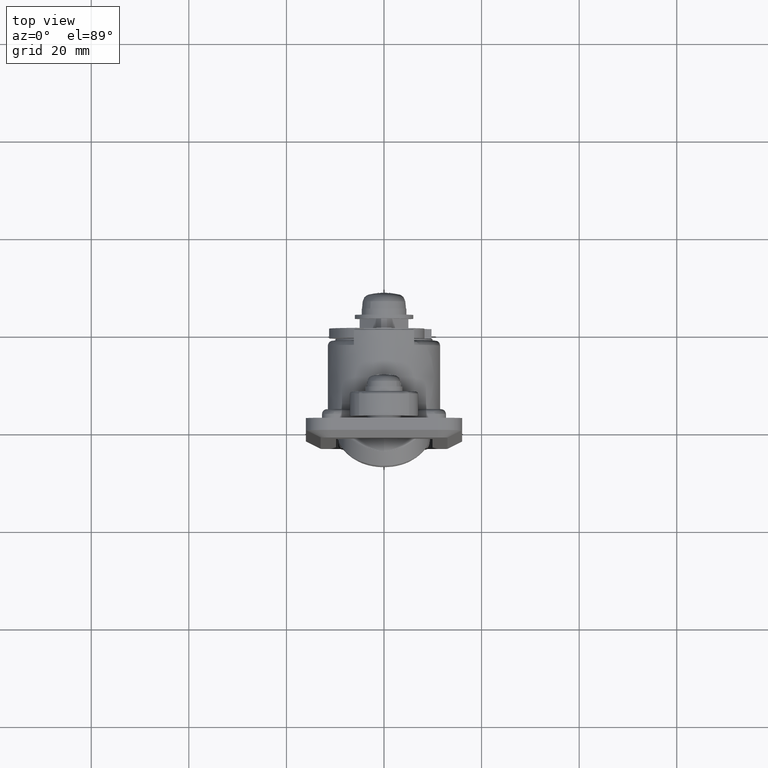
[diagram: clean part render]
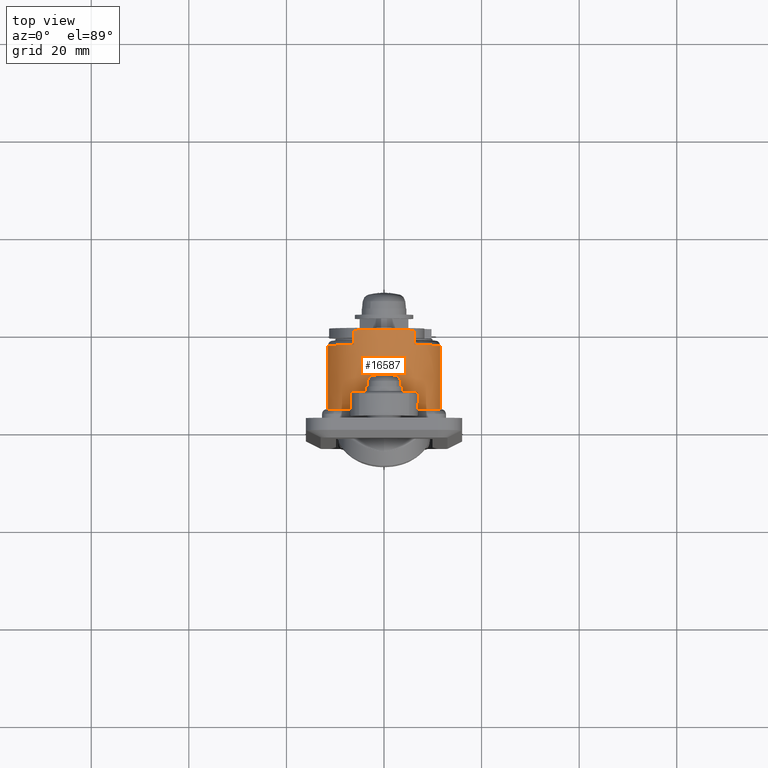
[diagram: same view with one face highlighted and labeled with its STEP entity id]
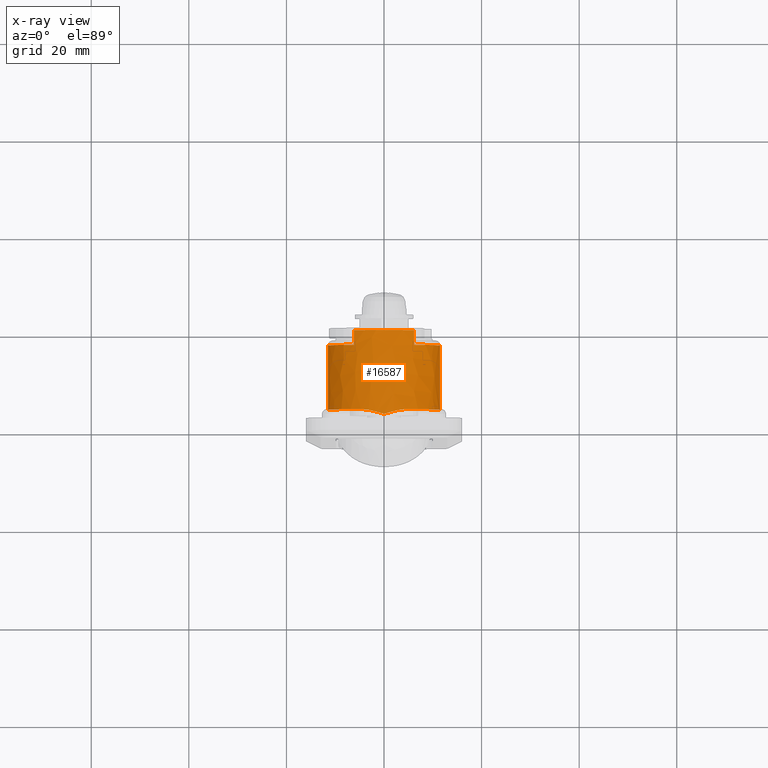
[diagram: x-ray of the same camera — body ghosted, the highlighted face saturated]
A machine part, top view. The second image highlights one B-rep face of the part: STEP entity #16587.
The next image is the same camera in x-ray: the body ghosted, the highlighted face saturated — about 0% of this face is hidden behind the body in this view.
In plain terms, the highlighted face is a freeform B-spline surface patch.
Its self-contained STEP definition (entity closure, byte-faithful):
#14096=CARTESIAN_POINT('',(3.0,4.690415759823431,11.500000000000000));
#14097=VERTEX_POINT('',#14096);
#14098=CARTESIAN_POINT('',(2.0,0.0,12.500000000000000));
#14099=VERTEX_POINT('',#14098);
#14100=CARTESIAN_POINT('',(3.0,4.690415759823431,11.500000000000000));
#14101=CARTESIAN_POINT('',(3.0,4.500392388326992,11.584884630133489));
#14102=CARTESIAN_POINT('',(2.989376017382828,4.309708842109276,11.663889404401710));
#14103=CARTESIAN_POINT('',(2.953453825861559,3.926430909640539,11.810886542966090));
#14104=CARTESIAN_POINT('',(2.928081584252105,3.733843825670081,11.878872378748300));
#14105=CARTESIAN_POINT('',(2.866392894892879,3.346413239475826,12.004225205722040));
#14106=CARTESIAN_POINT('',(2.830048187157119,3.151572512056965,12.061589668240920));
#14107=CARTESIAN_POINT('',(2.769239603087303,2.857420431964751,12.139813386983301));
#14108=CARTESIAN_POINT('',(2.747887405923897,2.758941881975345,12.164607425251710));
#14109=CARTESIAN_POINT('',(2.703542885086018,2.562246426042570,12.211383167135770));
#14110=CARTESIAN_POINT('',(2.680536602458008,2.463952355893662,12.233388737136391));
#14111=CARTESIAN_POINT('',(2.561962623284230,1.972601762261267,12.336674203456230));
#14112=CARTESIAN_POINT('',(2.455967405314631,1.579864825792287,12.397842860974450));
#14113=CARTESIAN_POINT('',(2.289201280699601,0.989072175396876,12.459098346714111));
#14114=CARTESIAN_POINT('',(2.232277269183736,0.791867987098467,12.474411080987799));
#14115=CARTESIAN_POINT('',(2.145781568037491,0.495413966688116,12.489750047008510));
#14116=CARTESIAN_POINT('',(2.102255003396337,0.347025155193370,12.495510255699200));
#14117=CARTESIAN_POINT('',(2.058470674062629,0.198349061517191,12.498396303014870));
#14118=CARTESIAN_POINT('',(2.029241510177549,0.099162776234110,12.499679414453270));
#14119=CARTESIAN_POINT('',(2.014552194140292,0.049349098586814,12.500000000000000));
#14120=CARTESIAN_POINT('',(2.0,0.0,12.500000000000000));
#14121=B_SPLINE_CURVE_WITH_KNOTS('',3,(#14100,#14101,#14102,#14103,#14104,#14105,#14106,#14107,#14108,#14109,#14110,#14111,#14112,#14113,#14114,#14115,#14116,#14117,#14118,#14119,#14120),.UNSPECIFIED.,.F.,.U.,(4,2,2,2,2,2,2,2,1,2,4),(0.0,0.125000000000000,0.250000000000000,0.375000000000000,0.437499999999999,0.499999999999999,0.750000000000000,0.875000000000000,0.937500000000000,0.968750000000000,1.0),.UNSPECIFIED.);
#14122=EDGE_CURVE('',#14097,#14099,#14121,.T.);
#14152=CARTESIAN_POINT('',(3.0,-4.690415759823431,11.500000000000000));
#14153=VERTEX_POINT('',#14152);
#14154=CARTESIAN_POINT('',(2.0,0.0,12.500000000000000));
#14155=CARTESIAN_POINT('',(2.014552194140292,-0.049349098586814,12.500000000000000));
#14156=CARTESIAN_POINT('',(2.029241510177549,-0.099162776234110,12.499679414453270));
#14157=CARTESIAN_POINT('',(2.058470674062629,-0.198349061517191,12.498396303014870));
#14158=CARTESIAN_POINT('',(2.102255003396337,-0.347025155193370,12.495510255699200));
#14159=CARTESIAN_POINT('',(2.145781568037491,-0.495413966688116,12.489750047008510));
#14160=CARTESIAN_POINT('',(2.232277269183736,-0.791867987098467,12.474411080987799));
#14161=CARTESIAN_POINT('',(2.289201280699601,-0.989072175396876,12.459098346714111));
#14162=CARTESIAN_POINT('',(2.455967405314631,-1.579864825792287,12.397842860974450));
#14163=CARTESIAN_POINT('',(2.561962623284230,-1.972601762261267,12.336674203456230));
#14164=CARTESIAN_POINT('',(2.680536602458008,-2.463952355893662,12.233388737136391));
#14165=CARTESIAN_POINT('',(2.703542885086018,-2.562246426042570,12.211383167135770));
#14166=CARTESIAN_POINT('',(2.747887405923897,-2.758941881975345,12.164607425251710));
#14167=CARTESIAN_POINT('',(2.769239603087303,-2.857420431964751,12.139813386983301));
#14168=CARTESIAN_POINT('',(2.830048187157119,-3.151572512056965,12.061589668240920));
#14169=CARTESIAN_POINT('',(2.866392894892879,-3.346413239475826,12.004225205722040));
#14170=CARTESIAN_POINT('',(2.928081584252105,-3.733843825670081,11.878872378748300));
#14171=CARTESIAN_POINT('',(2.953453825861559,-3.926430909640539,11.810886542966090));
#14172=CARTESIAN_POINT('',(2.989376017382828,-4.309708842109276,11.663889404401710));
#14173=CARTESIAN_POINT('',(3.0,-4.500392388326992,11.584884630133489));
#14174=CARTESIAN_POINT('',(3.0,-4.690415759823431,11.500000000000000));
#14175=B_SPLINE_CURVE_WITH_KNOTS('',3,(#14154,#14155,#14156,#14157,#14158,#14159,#14160,#14161,#14162,#14163,#14164,#14165,#14166,#14167,#14168,#14169,#14170,#14171,#14172,#14173,#14174),.UNSPECIFIED.,.F.,.U.,(4,2,1,2,2,2,2,2,2,2,4),(0.0,0.031250000000000,0.062500000000000,0.125000000000000,0.250000000000000,0.500000000000001,0.562500000000001,0.625000000000000,0.750000000000000,0.875000000000000,1.0),.UNSPECIFIED.);
#14176=EDGE_CURVE('',#14099,#14153,#14175,.T.);
#15805=CARTESIAN_POINT('',(16.199999999999999,11.500000000000000,1.0));
#15806=VERTEX_POINT('',#15805);
#15820=CARTESIAN_POINT('',(16.199999999999999,6.177575559335470,10.699874236746620));
#15821=VERTEX_POINT('',#15820);
#15822=CARTESIAN_POINT('',(16.199999999999999,6.177575559335472,10.699874236746631));
#15823=CARTESIAN_POINT('',(16.199999999999996,11.500000000000002,7.310172644895177));
#15824=CARTESIAN_POINT('',(16.199999999999999,11.500000000000000,1.0));
#15832=(BOUNDED_CURVE()B_SPLINE_CURVE(2,(#15822,#15823,#15824),.UNSPECIFIED.,.F.,.U.)CURVE()GEOMETRIC_REPRESENTATION_ITEM()QUASI_UNIFORM_CURVE()RATIONAL_B_SPLINE_CURVE((1.0,0.876692786391127,1.0))REPRESENTATION_ITEM(''));
#15833=EDGE_CURVE('',#15821,#15806,#15832,.T.);
#16014=CARTESIAN_POINT('',(16.199999999999999,-11.500000000000000,1.0));
#16015=VERTEX_POINT('',#16014);
#16060=CARTESIAN_POINT('',(16.199999999999999,-6.177574828179941,10.699874702398860));
#16061=VERTEX_POINT('',#16060);
#16092=CARTESIAN_POINT('',(16.199999999999999,-11.500000000000000,1.0));
#16093=CARTESIAN_POINT('',(16.199999999999996,-11.499999999999998,7.310173208814065));
#16094=CARTESIAN_POINT('',(16.199999999999999,-6.177574828179946,10.699874702398869));
#16102=(BOUNDED_CURVE()B_SPLINE_CURVE(2,(#16092,#16093,#16094),.UNSPECIFIED.,.F.,.U.)CURVE()GEOMETRIC_REPRESENTATION_ITEM()QUASI_UNIFORM_CURVE()RATIONAL_B_SPLINE_CURVE((1.0,0.876692768260847,1.0))REPRESENTATION_ITEM(''));
#16103=EDGE_CURVE('',#16015,#16061,#16102,.T.);
#16188=CARTESIAN_POINT('',(3.0,-11.500000000000000,1.0));
#16189=VERTEX_POINT('',#16188);
#16190=CARTESIAN_POINT('',(16.199999999999999,-11.500000000000000,1.0));
#16191=CARTESIAN_POINT('',(3.0,-11.500000000000000,1.0));
#16192=QUASI_UNIFORM_CURVE('',1,(#16190,#16191),.UNSPECIFIED.,.F.,.U.);
#16193=EDGE_CURVE('',#16015,#16189,#16192,.T.);
#16346=CARTESIAN_POINT('',(3.0,11.500000000000000,1.0));
#16347=VERTEX_POINT('',#16346);
#16348=CARTESIAN_POINT('',(16.199999999999999,11.500000000000000,1.0));
#16349=CARTESIAN_POINT('',(3.0,11.500000000000000,1.0));
#16350=QUASI_UNIFORM_CURVE('',1,(#16348,#16349),.UNSPECIFIED.,.F.,.U.);
#16351=EDGE_CURVE('',#15806,#16347,#16350,.T.);
#16508=CARTESIAN_POINT('',(19.629999999999999,11.499562115237969,0.899644841768710));
#16509=CARTESIAN_POINT('',(1.559250000000002,11.499562115237969,0.899644841768710));
#16510=CARTESIAN_POINT('',(19.629999999999999,11.603482923731715,12.807790007415218));
#16511=CARTESIAN_POINT('',(1.559250000000002,11.603482923731715,12.807790007415218));
#16512=CARTESIAN_POINT('',(19.629999999999999,-0.301034905540545,12.496059237218899));
#16513=CARTESIAN_POINT('',(1.559250000000002,-0.301034905540545,12.496059237218899));
#16514=CARTESIAN_POINT('',(19.629999999999999,-12.205552734812807,12.184328467022587));
#16515=CARTESIAN_POINT('',(1.559250000000002,-12.205552734812807,12.184328467022587));
#16516=CARTESIAN_POINT('',(19.629999999999999,-11.478550181851469,0.297941795349147));
#16517=CARTESIAN_POINT('',(1.559250000000002,-11.478550181851469,0.297941795349147));
#16525=(BOUNDED_SURFACE()B_SPLINE_SURFACE(1,2,((#16508,#16510,#16512,#16514,#16516),(#16509,#16511,#16513,#16515,#16517)),.UNSPECIFIED.,.F.,.F.,.U.)B_SPLINE_SURFACE_WITH_KNOTS((2,2),(3,2,3),(0.0,18.070750000000000),(0.0,19.525841545641800,39.051683091283607),.UNSPECIFIED.)GEOMETRIC_REPRESENTATION_ITEM()RATIONAL_B_SPLINE_SURFACE(((1.0,0.694658370458997,1.0,0.694658370458997,1.0),(1.0,0.694658370458997,1.0,0.694658370458997,1.0)))REPRESENTATION_ITEM('')SURFACE());
#16526=CARTESIAN_POINT('',(19.199999999999999,6.177575559335470,10.699874236746620));
#16527=VERTEX_POINT('',#16526);
#16528=CARTESIAN_POINT('',(19.199999999999999,6.177575559335470,10.699874236746620));
#16529=CARTESIAN_POINT('',(16.199999999999999,6.177575559335470,10.699874236746620));
#16530=QUASI_UNIFORM_CURVE('',1,(#16528,#16529),.UNSPECIFIED.,.F.,.U.);
#16531=EDGE_CURVE('',#16527,#15821,#16530,.T.);
#16532=ORIENTED_EDGE('',*,*,#16531,.T.);
#16533=ORIENTED_EDGE('',*,*,#15833,.T.);
#16534=ORIENTED_EDGE('',*,*,#16351,.T.);
#16535=CARTESIAN_POINT('',(3.0,11.500000000000000,1.0));
#16536=CARTESIAN_POINT('',(3.0,11.500000000000002,8.458116072574342));
#16537=CARTESIAN_POINT('',(3.0,4.690415759823428,11.500000000000000));
#16545=(BOUNDED_CURVE()B_SPLINE_CURVE(2,(#16535,#16536,#16537),.UNSPECIFIED.,.F.,.U.)CURVE()GEOMETRIC_REPRESENTATION_ITEM()QUASI_UNIFORM_CURVE()RATIONAL_B_SPLINE_CURVE((1.0,0.839006030963022,1.0))REPRESENTATION_ITEM(''));
#16546=EDGE_CURVE('',#16347,#14097,#16545,.T.);
#16547=ORIENTED_EDGE('',*,*,#16546,.T.);
#16548=ORIENTED_EDGE('',*,*,#14122,.T.);
#16549=ORIENTED_EDGE('',*,*,#14176,.T.);
#16550=CARTESIAN_POINT('',(3.0,-4.690415759823425,11.500000000000000));
#16551=CARTESIAN_POINT('',(3.000000000000000,-11.500000000000000,8.458116072574343));
#16552=CARTESIAN_POINT('',(3.0,-11.500000000000000,1.0));
#16560=(BOUNDED_CURVE()B_SPLINE_CURVE(2,(#16550,#16551,#16552),.UNSPECIFIED.,.F.,.U.)CURVE()GEOMETRIC_REPRESENTATION_ITEM()QUASI_UNIFORM_CURVE()RATIONAL_B_SPLINE_CURVE((1.0,0.839006030963022,1.0))REPRESENTATION_ITEM(''));
#16561=EDGE_CURVE('',#14153,#16189,#16560,.T.);
#16562=ORIENTED_EDGE('',*,*,#16561,.T.);
#16563=ORIENTED_EDGE('',*,*,#16193,.F.);
#16564=ORIENTED_EDGE('',*,*,#16103,.T.);
#16565=CARTESIAN_POINT('',(19.199999999999999,-6.177574828179941,10.699874702398860));
#16566=VERTEX_POINT('',#16565);
#16567=CARTESIAN_POINT('',(19.199999999999999,-6.177574828179941,10.699874702398860));
#16568=CARTESIAN_POINT('',(16.199999999999999,-6.177574828179941,10.699874702398860));
#16569=QUASI_UNIFORM_CURVE('',1,(#16567,#16568),.UNSPECIFIED.,.F.,.U.);
#16570=EDGE_CURVE('',#16566,#16061,#16569,.T.);
#16571=ORIENTED_EDGE('',*,*,#16570,.F.);
#16572=CARTESIAN_POINT('',(19.199999999999999,-6.177574828179946,10.699874702398869));
#16573=CARTESIAN_POINT('',(19.199999999999996,0.000000513858120,14.634197062534254));
#16574=CARTESIAN_POINT('',(19.199999999999999,6.177575559335472,10.699874236746631));
#16582=(BOUNDED_CURVE()B_SPLINE_CURVE(2,(#16572,#16573,#16574),.UNSPECIFIED.,.F.,.U.)CURVE()GEOMETRIC_REPRESENTATION_ITEM()QUASI_UNIFORM_CURVE()RATIONAL_B_SPLINE_CURVE((1.0,0.843467345180240,1.0))REPRESENTATION_ITEM(''));
#16583=EDGE_CURVE('',#16566,#16527,#16582,.T.);
#16584=ORIENTED_EDGE('',*,*,#16583,.T.);
#16585=EDGE_LOOP('',(#16532,#16533,#16534,#16547,#16548,#16549,#16562,#16563,#16564,#16571,#16584));
#16586=FACE_OUTER_BOUND('',#16585,.T.);
#16587=ADVANCED_FACE('',(#16586),#16525,.T.);